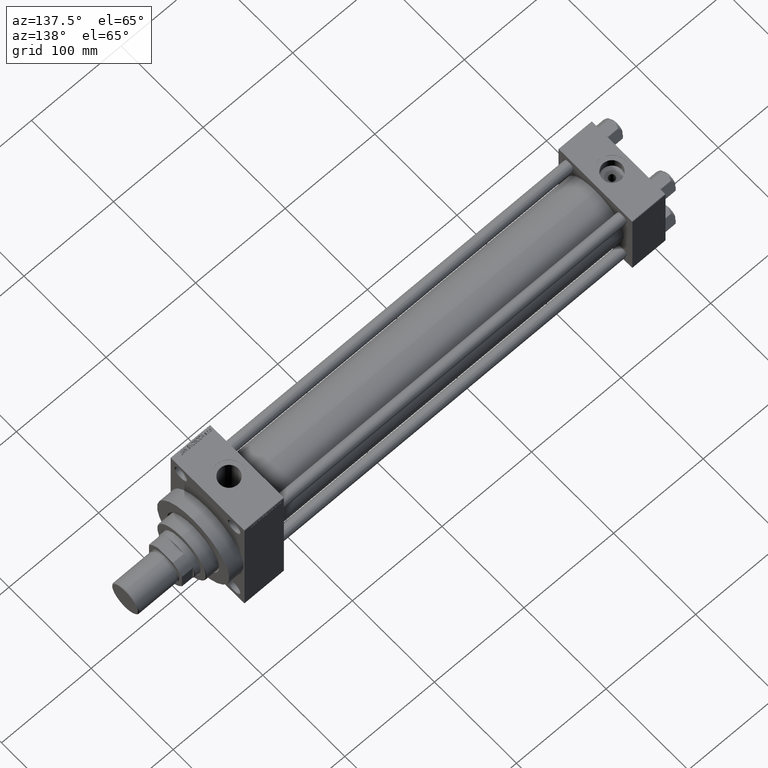
[diagram: clean part render]
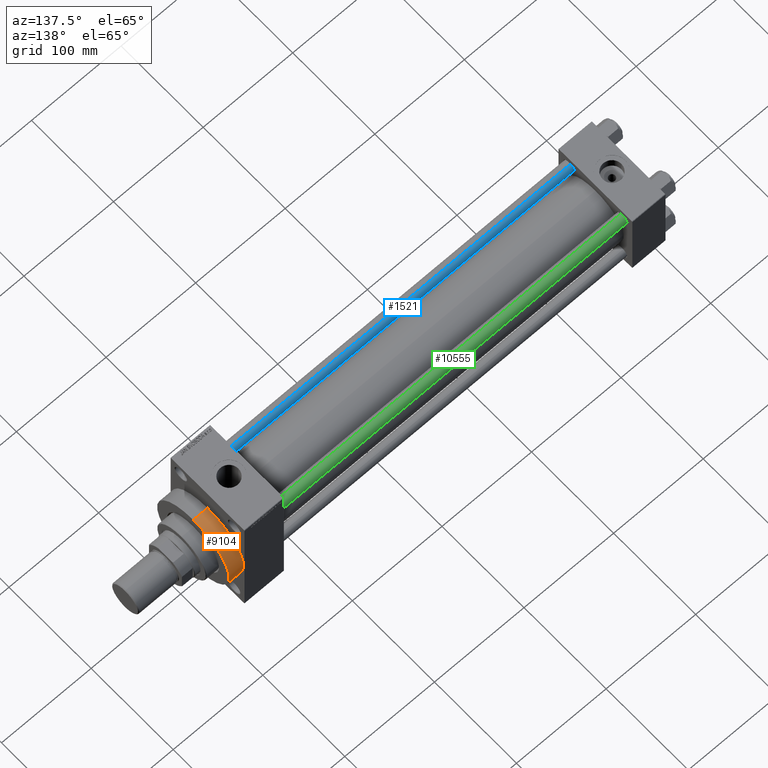
[diagram: same view with three faces highlighted in distinct colors, each labeled with its STEP entity id]
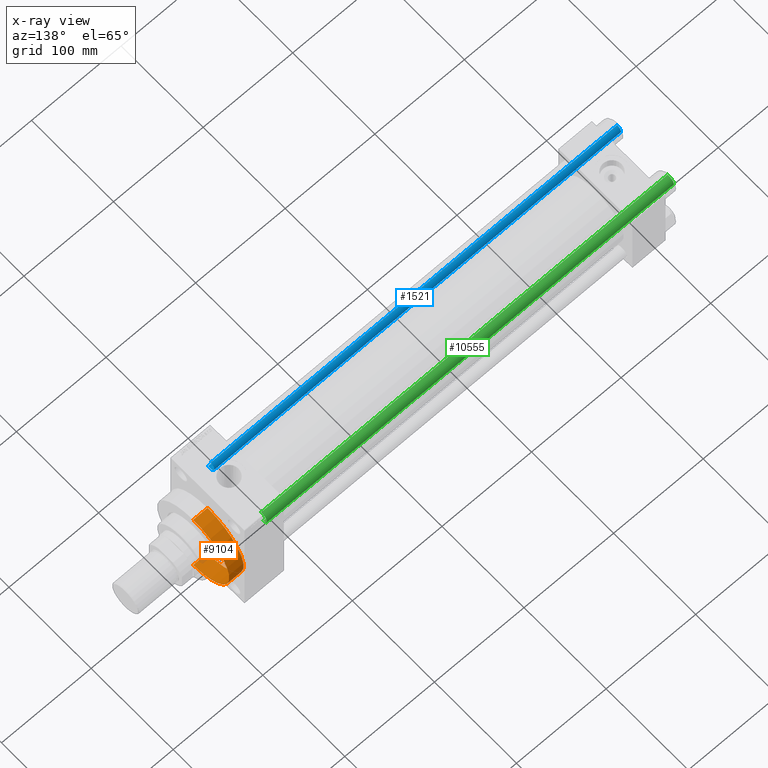
[diagram: x-ray of the same camera — body ghosted, the three highlighted faces saturated]
A machine part, auxiliary view with three faces highlighted in distinct colors.
The next image is the same camera in x-ray (body ghosted, the three faces saturated) — at least one of them is partly hidden behind the body in this view.
Their STEP definitions:

[orange] entity #9104 — the highlighted cylindrical surface (partial cylindrical patch) has radius 44 mm, axis along (-1, -0, -0).
#32 = CARTESIAN_POINT ( 'NONE',  ( 470.0000000000000000, 5.388445916248353619E-15, -44.00000000000000000 ) ) ;
#2355 = AXIS2_PLACEMENT_3D ( 'NONE', #10402, #6323, #21940 ) ;
#3108 = CIRCLE ( 'NONE', #2355, 44.00000000000000000 ) ;
#3769 = ORIENTED_EDGE ( 'NONE', *, *, #29938, .T. ) ;
#6323 = DIRECTION ( 'NONE',  ( 1.000000000000000000, 0.000000000000000000, 0.000000000000000000 ) ) ;
#6612 = CIRCLE ( 'NONE', #33523, 44.00000000000000000 ) ;
#8297 = VERTEX_POINT ( 'NONE', #32 ) ;
#9104 = ADVANCED_FACE ( 'NONE', ( #35739 ), #32120, .T. ) ;
#10402 = CARTESIAN_POINT ( 'NONE',  ( 470.0000000000000000, 0.000000000000000000, 0.000000000000000000 ) ) ;
#10889 = CARTESIAN_POINT ( 'NONE',  ( 486.0000000000000000, 5.388445916248353619E-15, -44.00000000000000000 ) ) ;
#11884 = CARTESIAN_POINT ( 'NONE',  ( 486.0000000000000000, 5.388445916248353619E-15, -44.00000000000000000 ) ) ;
#14764 = DIRECTION ( 'NONE',  ( -1.000000000000000000, -0.000000000000000000, -0.000000000000000000 ) ) ;
#14889 = EDGE_LOOP ( 'NONE', ( #43881, #3769, #34119, #46393 ) ) ;
#19843 = DIRECTION ( 'NONE',  ( -1.000000000000000000, -0.000000000000000000, -0.000000000000000000 ) ) ;
#21940 = DIRECTION ( 'NONE',  ( 0.000000000000000000, 0.000000000000000000, -1.000000000000000000 ) ) ;
#22960 = LINE ( 'NONE', #11884, #42386 ) ;
#24289 = CARTESIAN_POINT ( 'NONE',  ( 486.0000000000000000, 0.000000000000000000, 0.000000000000000000 ) ) ;
#27677 = DIRECTION ( 'NONE',  ( 0.000000000000000000, 0.000000000000000000, -1.000000000000000000 ) ) ;
#28127 = VECTOR ( 'NONE', #19843, 1000.000000000000000 ) ;
#29060 = EDGE_CURVE ( 'NONE', #8297, #44536, #3108, .T. ) ;
#29938 = EDGE_CURVE ( 'NONE', #30172, #8297, #22960, .T. ) ;
#30039 = CARTESIAN_POINT ( 'NONE',  ( 470.0000000000000000, 0.000000000000000000, 44.00000000000000000 ) ) ;
#30172 = VERTEX_POINT ( 'NONE', #10889 ) ;
#31773 = DIRECTION ( 'NONE',  ( 1.000000000000000000, 0.000000000000000000, 0.000000000000000000 ) ) ;
#32120 = CYLINDRICAL_SURFACE ( 'NONE', #32550, 44.00000000000000000 ) ;
#32351 = CARTESIAN_POINT ( 'NONE',  ( 486.0000000000000000, 0.000000000000000000, 0.000000000000000000 ) ) ;
#32550 = AXIS2_PLACEMENT_3D ( 'NONE', #32351, #14764, #47059 ) ;
#33332 = DIRECTION ( 'NONE',  ( -1.000000000000000000, -0.000000000000000000, -0.000000000000000000 ) ) ;
#33523 = AXIS2_PLACEMENT_3D ( 'NONE', #24289, #31773, #27677 ) ;
#34119 = ORIENTED_EDGE ( 'NONE', *, *, #29060, .T. ) ;
#35504 = CARTESIAN_POINT ( 'NONE',  ( 486.0000000000000000, 0.000000000000000000, 44.00000000000000000 ) ) ;
#35739 = FACE_OUTER_BOUND ( 'NONE', #14889, .T. ) ;
#37687 = LINE ( 'NONE', #41302, #28127 ) ;
#39922 = EDGE_CURVE ( 'NONE', #40786, #44536, #37687, .T. ) ;
#40786 = VERTEX_POINT ( 'NONE', #35504 ) ;
#41302 = CARTESIAN_POINT ( 'NONE',  ( 486.0000000000000000, 0.000000000000000000, 44.00000000000000000 ) ) ;
#41477 = EDGE_CURVE ( 'NONE', #30172, #40786, #6612, .T. ) ;
#42386 = VECTOR ( 'NONE', #33332, 1000.000000000000000 ) ;
#43881 = ORIENTED_EDGE ( 'NONE', *, *, #41477, .F. ) ;
#44536 = VERTEX_POINT ( 'NONE', #30039 ) ;
#46393 = ORIENTED_EDGE ( 'NONE', *, *, #39922, .F. ) ;
#47059 = DIRECTION ( 'NONE',  ( 0.000000000000000000, 0.000000000000000000, 1.000000000000000000 ) ) ;

[blue] entity #1521 — the highlighted cylindrical surface (edge-blend (fillet) strip) has radius 6 mm, axis along (1, 0, 0).
#231 = CARTESIAN_POINT ( 'NONE',  ( 0.000000000000000000, 0.000000000000000000, 0.5000000000002224887 ) ) ;
#396 = DIRECTION ( 'NONE',  ( -0.000000000000000000, -0.000000000000000000, -1.000000000000000000 ) ) ;
#1521 = ADVANCED_FACE ( 'NONE', ( #44476 ), #36526, .T. ) ;
#1706 = VERTEX_POINT ( 'NONE', #16980 ) ;
#3179 = AXIS2_PLACEMENT_3D ( 'NONE', #44005, #396, #11002 ) ;
#3465 = EDGE_CURVE ( 'NONE', #44211, #1706, #40036, .T. ) ;
#3836 = DIRECTION ( 'NONE',  ( -0.000000000000000000, -0.000000000000000000, 1.000000000000000000 ) ) ;
#6108 = CIRCLE ( 'NONE', #7630, 6.000000000000000888 ) ;
#7031 = DIRECTION ( 'NONE',  ( -0.000000000000000000, -0.000000000000000000, -1.000000000000000000 ) ) ;
#7630 = AXIS2_PLACEMENT_3D ( 'NONE', #13924, #9205, #8491 ) ;
#8491 = DIRECTION ( 'NONE',  ( 1.000000000000000000, 0.000000000000000000, 0.000000000000000000 ) ) ;
#8907 = AXIS2_PLACEMENT_3D ( 'NONE', #231, #3836, #18523 ) ;
#9205 = DIRECTION ( 'NONE',  ( 0.000000000000000000, 0.000000000000000000, -1.000000000000000000 ) ) ;
#11002 = DIRECTION ( 'NONE',  ( -1.000000000000000000, 0.000000000000000000, 0.000000000000000000 ) ) ;
#12480 = VECTOR ( 'NONE', #7031, 1000.000000000000000 ) ;
#13924 = CARTESIAN_POINT ( 'NONE',  ( 0.000000000000000000, 0.000000000000000000, 454.5000000000002842 ) ) ;
#14341 = CARTESIAN_POINT ( 'NONE',  ( 6.000000000000000888, 7.347880794884119736E-16, 454.5000000000002842 ) ) ;
#14655 = EDGE_CURVE ( 'NONE', #1706, #43929, #40434, .T. ) ;
#16047 = ORIENTED_EDGE ( 'NONE', *, *, #14655, .T. ) ;
#16980 = CARTESIAN_POINT ( 'NONE',  ( -6.000000000000000888, 0.000000000000000000, 0.5000000000002224887 ) ) ;
#18523 = DIRECTION ( 'NONE',  ( 1.000000000000000000, 0.000000000000000000, 0.000000000000000000 ) ) ;
#18824 = CARTESIAN_POINT ( 'NONE',  ( -6.000000000000000888, 0.000000000000000000, 454.5000000000002842 ) ) ;
#19983 = ORIENTED_EDGE ( 'NONE', *, *, #26416, .T. ) ;
#20138 = DIRECTION ( 'NONE',  ( -0.000000000000000000, -0.000000000000000000, -1.000000000000000000 ) ) ;
#26416 = EDGE_CURVE ( 'NONE', #40602, #44211, #6108, .T. ) ;
#27609 = LINE ( 'NONE', #34605, #35300 ) ;
#34605 = CARTESIAN_POINT ( 'NONE',  ( 6.000000000000000888, 7.347880794884119736E-16, 455.0000000000000000 ) ) ;
#35300 = VECTOR ( 'NONE', #20138, 1000.000000000000000 ) ;
#35796 = ORIENTED_EDGE ( 'NONE', *, *, #3465, .T. ) ;
#36237 = EDGE_LOOP ( 'NONE', ( #41799, #19983, #35796, #16047 ) ) ;
#36526 = CYLINDRICAL_SURFACE ( 'NONE', #3179, 6.000000000000000888 ) ;
#40036 = LINE ( 'NONE', #43647, #12480 ) ;
#40434 = CIRCLE ( 'NONE', #8907, 6.000000000000000888 ) ;
#40602 = VERTEX_POINT ( 'NONE', #14341 ) ;
#41799 = ORIENTED_EDGE ( 'NONE', *, *, #47414, .F. ) ;
#43647 = CARTESIAN_POINT ( 'NONE',  ( -6.000000000000000888, 0.000000000000000000, 455.0000000000000000 ) ) ;
#43929 = VERTEX_POINT ( 'NONE', #44679 ) ;
#44005 = CARTESIAN_POINT ( 'NONE',  ( 0.000000000000000000, 0.000000000000000000, 455.0000000000000000 ) ) ;
#44211 = VERTEX_POINT ( 'NONE', #18824 ) ;
#44476 = FACE_OUTER_BOUND ( 'NONE', #36237, .T. ) ;
#44679 = CARTESIAN_POINT ( 'NONE',  ( 6.000000000000000888, 7.347880794884119736E-16, 0.5000000000002224887 ) ) ;
#47414 = EDGE_CURVE ( 'NONE', #40602, #43929, #27609, .T. ) ;

[green] entity #10555 — the highlighted cylindrical surface (edge-blend (fillet) strip) has radius 6 mm, axis along (-1, -0, 0).
#1706 = VERTEX_POINT ( 'NONE', #16980 ) ;
#2185 = DIRECTION ( 'NONE',  ( 1.000000000000000000, 0.000000000000000000, 0.000000000000000000 ) ) ;
#3465 = EDGE_CURVE ( 'NONE', #44211, #1706, #40036, .T. ) ;
#5784 = CARTESIAN_POINT ( 'NONE',  ( 0.000000000000000000, 0.000000000000000000, 0.5000000000002224887 ) ) ;
#7031 = DIRECTION ( 'NONE',  ( -0.000000000000000000, -0.000000000000000000, -1.000000000000000000 ) ) ;
#10555 = ADVANCED_FACE ( 'NONE', ( #13711 ), #28866, .T. ) ;
#12480 = VECTOR ( 'NONE', #7031, 1000.000000000000000 ) ;
#13484 = DIRECTION ( 'NONE',  ( -0.000000000000000000, -0.000000000000000000, 1.000000000000000000 ) ) ;
#13711 = FACE_OUTER_BOUND ( 'NONE', #15184, .T. ) ;
#14341 = CARTESIAN_POINT ( 'NONE',  ( 6.000000000000000888, 7.347880794884119736E-16, 454.5000000000002842 ) ) ;
#15184 = EDGE_LOOP ( 'NONE', ( #18890, #16444, #32456, #15948 ) ) ;
#15948 = ORIENTED_EDGE ( 'NONE', *, *, #3465, .F. ) ;
#16444 = ORIENTED_EDGE ( 'NONE', *, *, #47414, .T. ) ;
#16892 = EDGE_CURVE ( 'NONE', #44211, #40602, #25114, .T. ) ;
#16980 = CARTESIAN_POINT ( 'NONE',  ( -6.000000000000000888, 0.000000000000000000, 0.5000000000002224887 ) ) ;
#18824 = CARTESIAN_POINT ( 'NONE',  ( -6.000000000000000888, 0.000000000000000000, 454.5000000000002842 ) ) ;
#18890 = ORIENTED_EDGE ( 'NONE', *, *, #16892, .T. ) ;
#20138 = DIRECTION ( 'NONE',  ( -0.000000000000000000, -0.000000000000000000, -1.000000000000000000 ) ) ;
#21162 = DIRECTION ( 'NONE',  ( -0.000000000000000000, -0.000000000000000000, -1.000000000000000000 ) ) ;
#21569 = CARTESIAN_POINT ( 'NONE',  ( 0.000000000000000000, 0.000000000000000000, 454.5000000000002842 ) ) ;
#25114 = CIRCLE ( 'NONE', #31278, 6.000000000000000888 ) ;
#25208 = CIRCLE ( 'NONE', #42927, 6.000000000000000888 ) ;
#25661 = DIRECTION ( 'NONE',  ( 1.000000000000000000, 0.000000000000000000, 0.000000000000000000 ) ) ;
#27609 = LINE ( 'NONE', #34605, #35300 ) ;
#28406 = CARTESIAN_POINT ( 'NONE',  ( 0.000000000000000000, 0.000000000000000000, 455.0000000000000000 ) ) ;
#28866 = CYLINDRICAL_SURFACE ( 'NONE', #37229, 6.000000000000000888 ) ;
#31278 = AXIS2_PLACEMENT_3D ( 'NONE', #21569, #46645, #25661 ) ;
#32456 = ORIENTED_EDGE ( 'NONE', *, *, #45178, .T. ) ;
#34605 = CARTESIAN_POINT ( 'NONE',  ( 6.000000000000000888, 7.347880794884119736E-16, 455.0000000000000000 ) ) ;
#35300 = VECTOR ( 'NONE', #20138, 1000.000000000000000 ) ;
#37229 = AXIS2_PLACEMENT_3D ( 'NONE', #28406, #21162, #43570 ) ;
#40036 = LINE ( 'NONE', #43647, #12480 ) ;
#40602 = VERTEX_POINT ( 'NONE', #14341 ) ;
#42927 = AXIS2_PLACEMENT_3D ( 'NONE', #5784, #13484, #2185 ) ;
#43570 = DIRECTION ( 'NONE',  ( -1.000000000000000000, 0.000000000000000000, 0.000000000000000000 ) ) ;
#43647 = CARTESIAN_POINT ( 'NONE',  ( -6.000000000000000888, 0.000000000000000000, 455.0000000000000000 ) ) ;
#43929 = VERTEX_POINT ( 'NONE', #44679 ) ;
#44211 = VERTEX_POINT ( 'NONE', #18824 ) ;
#44679 = CARTESIAN_POINT ( 'NONE',  ( 6.000000000000000888, 7.347880794884119736E-16, 0.5000000000002224887 ) ) ;
#45178 = EDGE_CURVE ( 'NONE', #43929, #1706, #25208, .T. ) ;
#46645 = DIRECTION ( 'NONE',  ( 0.000000000000000000, 0.000000000000000000, -1.000000000000000000 ) ) ;
#47414 = EDGE_CURVE ( 'NONE', #40602, #43929, #27609, .T. ) ;